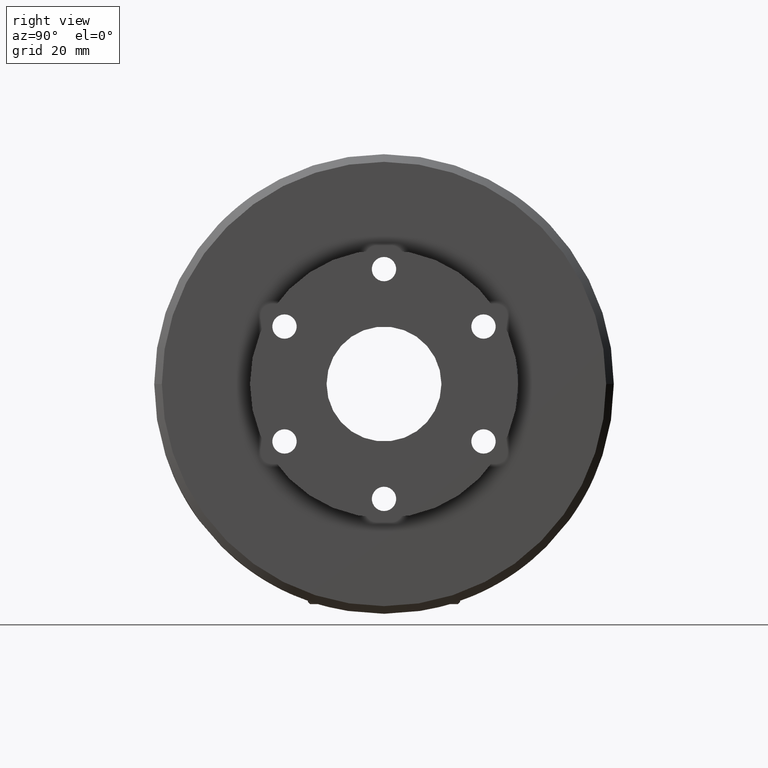
[diagram: clean part render]
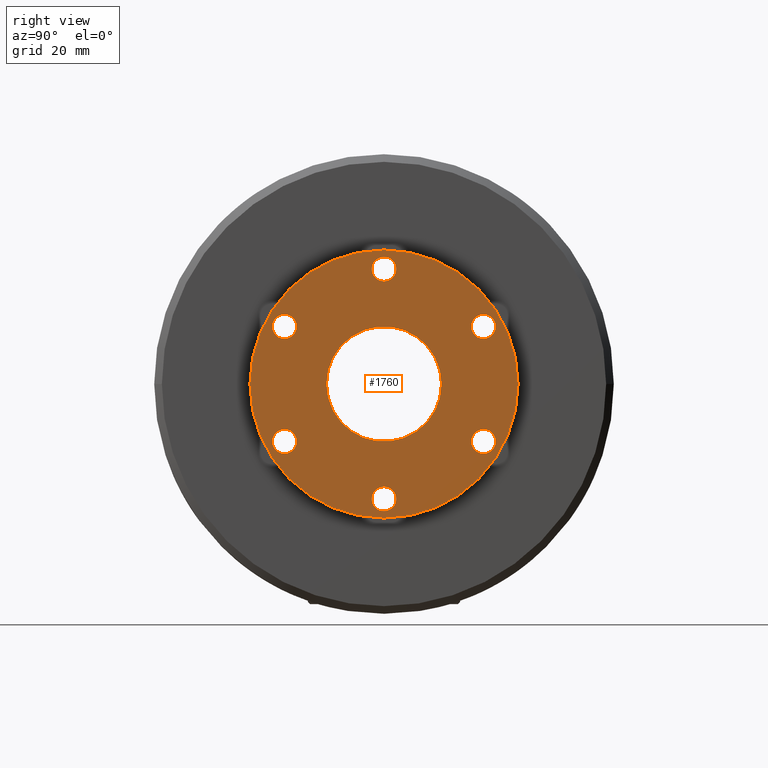
[diagram: same view with one face highlighted and labeled with its STEP entity id]
A machine part, right view. The second image highlights one B-rep face of the part: STEP entity #1760.
In plain terms, the highlighted planar face has unit normal (-1, -0, 0).
Its self-contained STEP definition (entity closure, byte-faithful):
#366 = DIRECTION ( 'NONE',  ( 0.0000000000000000000, 0.0000000000000000000, -1.000000000000000000 ) ) ;
#368 = DIRECTION ( 'NONE',  ( 1.000000000000000000, -0.0000000000000000000, -0.0000000000000000000 ) ) ;
#373 = CARTESIAN_POINT ( 'NONE',  ( 1.095000000000000000, 2.326758979145853200E-016, -0.7500000000000001100 ) ) ;
#396 = CARTESIAN_POINT ( 'NONE',  ( 1.095000000000000000, 0.6495190528383292200, 0.3750000000000000600 ) ) ;
#416 = DIRECTION ( 'NONE',  ( 1.000000000000000000, -0.0000000000000000000, -0.0000000000000000000 ) ) ;
#432 = CARTESIAN_POINT ( 'NONE',  ( 1.095000000000000000, 2.194690743086434000E-016, 0.0000000000000000000 ) ) ;
#443 = CARTESIAN_POINT ( 'NONE',  ( 1.095000000000000200, -0.6495190528383287800, -0.3750000000000000600 ) ) ;
#474 = DIRECTION ( 'NONE',  ( 1.000000000000000000, -0.0000000000000000000, -0.0000000000000000000 ) ) ;
#503 = DIRECTION ( 'NONE',  ( 1.000000000000000000, -0.0000000000000000000, -0.0000000000000000000 ) ) ;
#504 = DIRECTION ( 'NONE',  ( 1.000000000000000000, -0.0000000000000000000, -0.0000000000000000000 ) ) ;
#536 = DIRECTION ( 'NONE',  ( 0.0000000000000000000, 1.000000000000000000, 0.0000000000000000000 ) ) ;
#549 = DIRECTION ( 'NONE',  ( 0.0000000000000000000, 0.0000000000000000000, -1.000000000000000000 ) ) ;
#559 = DIRECTION ( 'NONE',  ( 1.000000000000000000, 1.193989507720394800E-016, 0.0000000000000000000 ) ) ;
#568 = DIRECTION ( 'NONE',  ( 0.0000000000000000000, 0.0000000000000000000, -1.000000000000000000 ) ) ;
#611 = CARTESIAN_POINT ( 'NONE',  ( 1.095000000000000000, 2.326758979145853200E-016, 0.7500000000000001100 ) ) ;
#649 = CARTESIAN_POINT ( 'NONE',  ( 1.095000000000000200, -0.6495190528383287800, 0.3750000000000000600 ) ) ;
#681 = DIRECTION ( 'NONE',  ( 0.0000000000000000000, 0.0000000000000000000, -1.000000000000000000 ) ) ;
#709 = DIRECTION ( 'NONE',  ( 0.0000000000000000000, 0.0000000000000000000, -1.000000000000000000 ) ) ;
#711 = DIRECTION ( 'NONE',  ( 0.0000000000000000000, 0.0000000000000000000, -1.000000000000000000 ) ) ;
#786 = CARTESIAN_POINT ( 'NONE',  ( 1.095000000000000000, 2.681976490132703300E-016, 0.0000000000000000000 ) ) ;
#787 = CARTESIAN_POINT ( 'NONE',  ( 1.095000000000000000, 0.6495190528383292200, -0.3750000000000000600 ) ) ;
#804 = DIRECTION ( 'NONE',  ( 1.000000000000000000, -0.0000000000000000000, -0.0000000000000000000 ) ) ;
#805 = DIRECTION ( 'NONE',  ( -1.000000000000000000, -1.224646799147353200E-016, -0.0000000000000000000 ) ) ;
#808 = DIRECTION ( 'NONE',  ( 1.561055996379579500E-016, -1.000000000000000000, 0.0000000000000000000 ) ) ;
#1107 = CARTESIAN_POINT ( 'NONE',  ( 1.095000000000000000, 2.424118399678067300E-016, 0.8294999999999999000 ) ) ;
#1108 = CARTESIAN_POINT ( 'NONE',  ( 1.095000000000000000, 2.326758979145853200E-016, 0.6705000000000003200 ) ) ;
#1111 = CARTESIAN_POINT ( 'NONE',  ( 1.095000000000000000, 0.6495190528383292200, -0.2955000000000002600 ) ) ;
#1112 = CARTESIAN_POINT ( 'NONE',  ( 1.095000000000000000, 0.6495190528383292200, -0.4544999999999998500 ) ) ;
#1116 = CARTESIAN_POINT ( 'NONE',  ( 1.095000000000000200, -0.6495190528383287800, -0.2955000000000003200 ) ) ;
#1117 = CARTESIAN_POINT ( 'NONE',  ( 1.095000000000000200, -0.6495190528383287800, -0.4544999999999997400 ) ) ;
#1122 = CARTESIAN_POINT ( 'NONE',  ( 1.095000000000000200, -0.6495190528383287800, 0.4544999999999997400 ) ) ;
#1127 = CARTESIAN_POINT ( 'NONE',  ( 1.095000000000000200, -0.6495190528383287800, 0.2955000000000003200 ) ) ;
#1132 = CARTESIAN_POINT ( 'NONE',  ( 1.095000000000000000, 2.424118399678067300E-016, -0.6705000000000003200 ) ) ;
#1134 = CARTESIAN_POINT ( 'NONE',  ( 1.095000000000000000, 2.326758979145853200E-016, -0.8294999999999999000 ) ) ;
#1137 = CARTESIAN_POINT ( 'NONE',  ( 1.095000000000000000, 0.6495190528383292200, 0.4544999999999998500 ) ) ;
#1138 = CARTESIAN_POINT ( 'NONE',  ( 1.095000000000000000, 0.6495190528383292200, 0.2955000000000002600 ) ) ;
#1142 = CARTESIAN_POINT ( 'NONE',  ( 1.095000000000000000, -0.3749999999999998300, 4.592425496802575500E-017 ) ) ;
#1143 = CARTESIAN_POINT ( 'NONE',  ( 1.095000000000000000, 0.3750000000000002200, 0.0000000000000000000 ) ) ;
#1145 = CARTESIAN_POINT ( 'NONE',  ( 1.095000000000000000, -0.8749999999999994400, 0.0000000000000000000 ) ) ;
#1146 = CARTESIAN_POINT ( 'NONE',  ( 1.094999999999999800, 0.8750000000000000000, 1.071565949253933700E-016 ) ) ;
#1236 = VERTEX_POINT ( 'NONE', #1146 ) ;
#1237 = VERTEX_POINT ( 'NONE', #1145 ) ;
#1239 = VERTEX_POINT ( 'NONE', #1143 ) ;
#1241 = VERTEX_POINT ( 'NONE', #1142 ) ;
#1244 = VERTEX_POINT ( 'NONE', #1138 ) ;
#1246 = VERTEX_POINT ( 'NONE', #1137 ) ;
#1249 = VERTEX_POINT ( 'NONE', #1134 ) ;
#1252 = VERTEX_POINT ( 'NONE', #1132 ) ;
#1256 = VERTEX_POINT ( 'NONE', #1127 ) ;
#1259 = VERTEX_POINT ( 'NONE', #1122 ) ;
#1263 = VERTEX_POINT ( 'NONE', #1117 ) ;
#1264 = VERTEX_POINT ( 'NONE', #1116 ) ;
#1267 = VERTEX_POINT ( 'NONE', #1112 ) ;
#1269 = VERTEX_POINT ( 'NONE', #1111 ) ;
#1273 = VERTEX_POINT ( 'NONE', #1108 ) ;
#1274 = VERTEX_POINT ( 'NONE', #1107 ) ;
#1760 = ADVANCED_FACE ( 'NONE', ( #2675, #2674, #2678, #2680, #2676, #2663, #2677, #2679 ), #4323, .F. ) ;
#1827 = EDGE_CURVE ( 'NONE', #1274, #1273, #3021, .T. ) ;
#1828 = EDGE_CURVE ( 'NONE', #1269, #1267, #3022, .T. ) ;
#1829 = EDGE_CURVE ( 'NONE', #1264, #1263, #3024, .T. ) ;
#1833 = EDGE_CURVE ( 'NONE', #1259, #1256, #3030, .T. ) ;
#1837 = EDGE_CURVE ( 'NONE', #1252, #1249, #3036, .T. ) ;
#1841 = EDGE_CURVE ( 'NONE', #1246, #1244, #3042, .T. ) ;
#1845 = EDGE_CURVE ( 'NONE', #1241, #1239, #3048, .T. ) ;
#1861 = EDGE_CURVE ( 'NONE', #1237, #1236, #3070, .T. ) ;
#1929 = EDGE_CURVE ( 'NONE', #1256, #1259, #3142, .T. ) ;
#1930 = EDGE_CURVE ( 'NONE', #1263, #1264, #3143, .T. ) ;
#1937 = EDGE_CURVE ( 'NONE', #1249, #1252, #3149, .T. ) ;
#1938 = EDGE_CURVE ( 'NONE', #1244, #1246, #3150, .T. ) ;
#1939 = EDGE_CURVE ( 'NONE', #1273, #1274, #3151, .T. ) ;
#1940 = EDGE_CURVE ( 'NONE', #1267, #1269, #3152, .T. ) ;
#1941 = EDGE_CURVE ( 'NONE', #1239, #1241, #3153, .T. ) ;
#1942 = EDGE_CURVE ( 'NONE', #1236, #1237, #3154, .T. ) ;
#2162 = ORIENTED_EDGE ( 'NONE', *, *, #1939, .F. ) ;
#2163 = ORIENTED_EDGE ( 'NONE', *, *, #1827, .F. ) ;
#2164 = ORIENTED_EDGE ( 'NONE', *, *, #1940, .F. ) ;
#2165 = ORIENTED_EDGE ( 'NONE', *, *, #1828, .F. ) ;
#2166 = ORIENTED_EDGE ( 'NONE', *, *, #1930, .F. ) ;
#2167 = ORIENTED_EDGE ( 'NONE', *, *, #1829, .F. ) ;
#2168 = ORIENTED_EDGE ( 'NONE', *, *, #1929, .F. ) ;
#2169 = ORIENTED_EDGE ( 'NONE', *, *, #1833, .F. ) ;
#2170 = ORIENTED_EDGE ( 'NONE', *, *, #1937, .F. ) ;
#2171 = ORIENTED_EDGE ( 'NONE', *, *, #1837, .F. ) ;
#2172 = ORIENTED_EDGE ( 'NONE', *, *, #1938, .F. ) ;
#2173 = ORIENTED_EDGE ( 'NONE', *, *, #1841, .F. ) ;
#2174 = ORIENTED_EDGE ( 'NONE', *, *, #1941, .F. ) ;
#2175 = ORIENTED_EDGE ( 'NONE', *, *, #1845, .F. ) ;
#2176 = ORIENTED_EDGE ( 'NONE', *, *, #1861, .F. ) ;
#2177 = ORIENTED_EDGE ( 'NONE', *, *, #1942, .F. ) ;
#2663 = FACE_BOUND ( 'NONE', #3494, .T. ) ;
#2674 = FACE_BOUND ( 'NONE', #3490, .T. ) ;
#2675 = FACE_BOUND ( 'NONE', #3478, .T. ) ;
#2676 = FACE_BOUND ( 'NONE', #3493, .T. ) ;
#2677 = FACE_BOUND ( 'NONE', #3495, .T. ) ;
#2678 = FACE_BOUND ( 'NONE', #3491, .T. ) ;
#2679 = FACE_OUTER_BOUND ( 'NONE', #3496, .T. ) ;
#2680 = FACE_BOUND ( 'NONE', #3492, .T. ) ;
#2819 = AXIS2_PLACEMENT_3D ( 'NONE', #4330, #4321, #4320 ) ;
#2833 = AXIS2_PLACEMENT_3D ( 'NONE', #787, #416, #568 ) ;
#2834 = AXIS2_PLACEMENT_3D ( 'NONE', #443, #474, #711 ) ;
#2835 = AXIS2_PLACEMENT_3D ( 'NONE', #611, #504, #366 ) ;
#2836 = AXIS2_PLACEMENT_3D ( 'NONE', #373, #804, #709 ) ;
#2837 = AXIS2_PLACEMENT_3D ( 'NONE', #649, #503, #549 ) ;
#2839 = AXIS2_PLACEMENT_3D ( 'NONE', #396, #368, #681 ) ;
#2841 = AXIS2_PLACEMENT_3D ( 'NONE', #432, #559, #536 ) ;
#2849 = AXIS2_PLACEMENT_3D ( 'NONE', #786, #805, #808 ) ;
#2881 = AXIS2_PLACEMENT_3D ( 'NONE', #3713, #3714, #3715 ) ;
#2884 = AXIS2_PLACEMENT_3D ( 'NONE', #3681, #3717, #3718 ) ;
#2890 = AXIS2_PLACEMENT_3D ( 'NONE', #3747, #3754, #3755 ) ;
#2891 = AXIS2_PLACEMENT_3D ( 'NONE', #3750, #3757, #3758 ) ;
#2892 = AXIS2_PLACEMENT_3D ( 'NONE', #3753, #3760, #3761 ) ;
#2893 = AXIS2_PLACEMENT_3D ( 'NONE', #3756, #3763, #3764 ) ;
#2894 = AXIS2_PLACEMENT_3D ( 'NONE', #3759, #3766, #3767 ) ;
#2895 = AXIS2_PLACEMENT_3D ( 'NONE', #3762, #3769, #3770 ) ;
#3021 = CIRCLE ( 'NONE', #2835, 0.07949999999999979300 ) ;
#3022 = CIRCLE ( 'NONE', #2833, 0.07949999999999979300 ) ;
#3024 = CIRCLE ( 'NONE', #2834, 0.07949999999999972400 ) ;
#3030 = CIRCLE ( 'NONE', #2837, 0.07949999999999972400 ) ;
#3036 = CIRCLE ( 'NONE', #2836, 0.07949999999999979300 ) ;
#3042 = CIRCLE ( 'NONE', #2839, 0.07949999999999979300 ) ;
#3048 = CIRCLE ( 'NONE', #2841, 0.3750000000000000600 ) ;
#3070 = CIRCLE ( 'NONE', #2849, 0.8749999999999996700 ) ;
#3142 = CIRCLE ( 'NONE', #2881, 0.07949999999999972400 ) ;
#3143 = CIRCLE ( 'NONE', #2884, 0.07949999999999972400 ) ;
#3149 = CIRCLE ( 'NONE', #2890, 0.07949999999999979300 ) ;
#3150 = CIRCLE ( 'NONE', #2891, 0.07949999999999979300 ) ;
#3151 = CIRCLE ( 'NONE', #2892, 0.07949999999999979300 ) ;
#3152 = CIRCLE ( 'NONE', #2893, 0.07949999999999979300 ) ;
#3153 = CIRCLE ( 'NONE', #2894, 0.3750000000000000600 ) ;
#3154 = CIRCLE ( 'NONE', #2895, 0.8749999999999996700 ) ;
#3478 = EDGE_LOOP ( 'NONE', ( #2162, #2163 ) ) ;
#3490 = EDGE_LOOP ( 'NONE', ( #2164, #2165 ) ) ;
#3491 = EDGE_LOOP ( 'NONE', ( #2166, #2167 ) ) ;
#3492 = EDGE_LOOP ( 'NONE', ( #2168, #2169 ) ) ;
#3493 = EDGE_LOOP ( 'NONE', ( #2170, #2171 ) ) ;
#3494 = EDGE_LOOP ( 'NONE', ( #2172, #2173 ) ) ;
#3495 = EDGE_LOOP ( 'NONE', ( #2174, #2175 ) ) ;
#3496 = EDGE_LOOP ( 'NONE', ( #2176, #2177 ) ) ;
#3681 = CARTESIAN_POINT ( 'NONE',  ( 1.095000000000000200, -0.6495190528383287800, -0.3750000000000000600 ) ) ;
#3713 = CARTESIAN_POINT ( 'NONE',  ( 1.095000000000000200, -0.6495190528383287800, 0.3750000000000000600 ) ) ;
#3714 = DIRECTION ( 'NONE',  ( 1.000000000000000000, -0.0000000000000000000, -0.0000000000000000000 ) ) ;
#3715 = DIRECTION ( 'NONE',  ( 0.0000000000000000000, 0.0000000000000000000, -1.000000000000000000 ) ) ;
#3717 = DIRECTION ( 'NONE',  ( 1.000000000000000000, -0.0000000000000000000, -0.0000000000000000000 ) ) ;
#3718 = DIRECTION ( 'NONE',  ( 0.0000000000000000000, 0.0000000000000000000, -1.000000000000000000 ) ) ;
#3747 = CARTESIAN_POINT ( 'NONE',  ( 1.095000000000000000, 2.326758979145853200E-016, -0.7500000000000001100 ) ) ;
#3750 = CARTESIAN_POINT ( 'NONE',  ( 1.095000000000000000, 0.6495190528383292200, 0.3750000000000000600 ) ) ;
#3753 = CARTESIAN_POINT ( 'NONE',  ( 1.095000000000000000, 2.326758979145853200E-016, 0.7500000000000001100 ) ) ;
#3754 = DIRECTION ( 'NONE',  ( 1.000000000000000000, -0.0000000000000000000, -0.0000000000000000000 ) ) ;
#3755 = DIRECTION ( 'NONE',  ( 0.0000000000000000000, 0.0000000000000000000, -1.000000000000000000 ) ) ;
#3756 = CARTESIAN_POINT ( 'NONE',  ( 1.095000000000000000, 0.6495190528383292200, -0.3750000000000000600 ) ) ;
#3757 = DIRECTION ( 'NONE',  ( 1.000000000000000000, -0.0000000000000000000, -0.0000000000000000000 ) ) ;
#3758 = DIRECTION ( 'NONE',  ( 0.0000000000000000000, 0.0000000000000000000, -1.000000000000000000 ) ) ;
#3759 = CARTESIAN_POINT ( 'NONE',  ( 1.095000000000000000, 2.194690743086434000E-016, 0.0000000000000000000 ) ) ;
#3760 = DIRECTION ( 'NONE',  ( 1.000000000000000000, -0.0000000000000000000, -0.0000000000000000000 ) ) ;
#3761 = DIRECTION ( 'NONE',  ( 0.0000000000000000000, 0.0000000000000000000, -1.000000000000000000 ) ) ;
#3762 = CARTESIAN_POINT ( 'NONE',  ( 1.095000000000000000, 2.681976490132703300E-016, 0.0000000000000000000 ) ) ;
#3763 = DIRECTION ( 'NONE',  ( 1.000000000000000000, -0.0000000000000000000, -0.0000000000000000000 ) ) ;
#3764 = DIRECTION ( 'NONE',  ( 0.0000000000000000000, 0.0000000000000000000, -1.000000000000000000 ) ) ;
#3766 = DIRECTION ( 'NONE',  ( 1.000000000000000000, 1.193989507720394800E-016, 0.0000000000000000000 ) ) ;
#3767 = DIRECTION ( 'NONE',  ( 0.0000000000000000000, 1.000000000000000000, 0.0000000000000000000 ) ) ;
#3769 = DIRECTION ( 'NONE',  ( -1.000000000000000000, -1.224646799147353200E-016, -0.0000000000000000000 ) ) ;
#3770 = DIRECTION ( 'NONE',  ( 1.561055996379579500E-016, -1.000000000000000000, 0.0000000000000000000 ) ) ;
#4320 = DIRECTION ( 'NONE',  ( 1.224646799147353200E-016, -1.000000000000000000, 0.0000000000000000000 ) ) ;
#4321 = DIRECTION ( 'NONE',  ( -1.000000000000000000, -1.224646799147353200E-016, 0.0000000000000000000 ) ) ;
#4323 = PLANE ( 'NONE',  #2819 ) ;
#4330 = CARTESIAN_POINT ( 'NONE',  ( 1.095000000000000000, 0.8750000000000000000, 0.0000000000000000000 ) ) ;